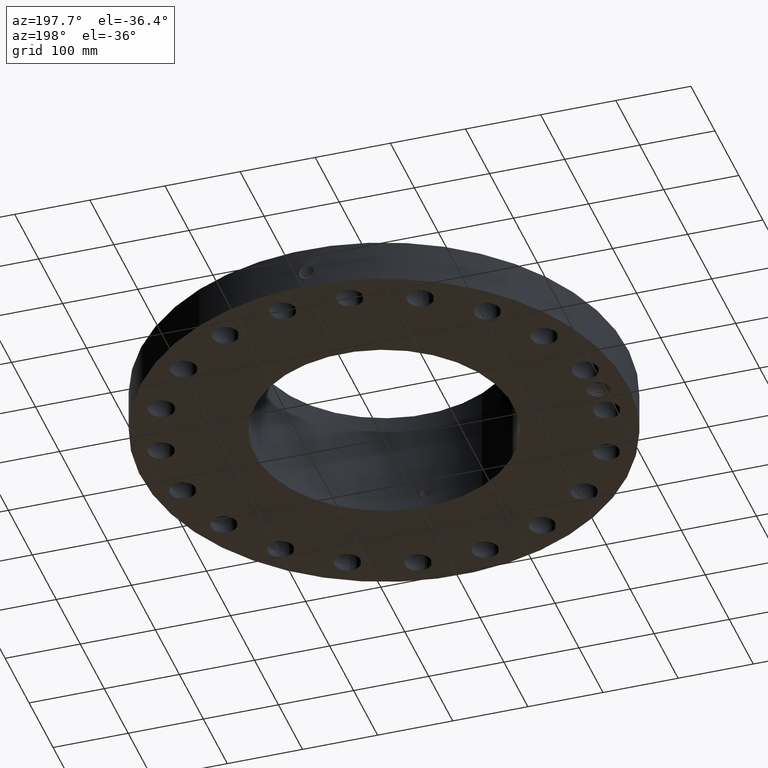
[diagram: clean part render]
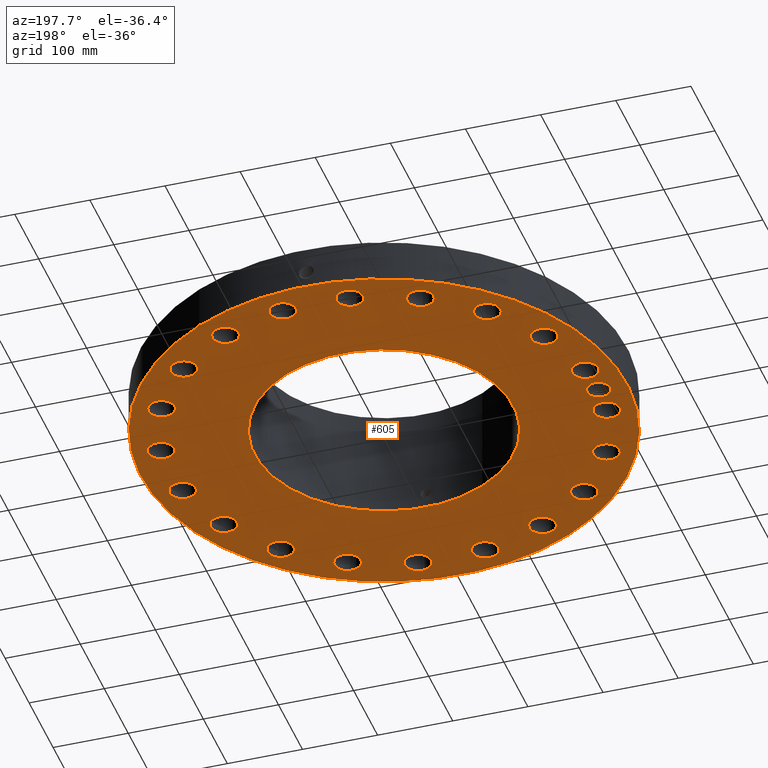
[diagram: same view with one face highlighted and labeled with its STEP entity id]
A machine part, auxiliary view. The second image highlights one B-rep face of the part: STEP entity #605.
In plain terms, the highlighted planar face has unit normal (0, 0, -1).
Its self-contained STEP definition (entity closure, byte-faithful):
#42=AXIS2_PLACEMENT_3D('Circle Axis2P3D',#40,#41,$) ;
#165=AXIS2_PLACEMENT_3D('Plane Axis2P3D',#162,#163,#164) ;
#169=AXIS2_PLACEMENT_3D('Circle Axis2P3D',#167,#168,$) ;
#178=AXIS2_PLACEMENT_3D('Circle Axis2P3D',#176,#177,$) ;
#187=AXIS2_PLACEMENT_3D('Circle Axis2P3D',#185,#186,$) ;
#194=AXIS2_PLACEMENT_3D('Circle Axis2P3D',#192,#193,$) ;
#229=AXIS2_PLACEMENT_3D('Circle Axis2P3D',#227,#228,$) ;
#238=AXIS2_PLACEMENT_3D('Circle Axis2P3D',#236,#237,$) ;
#247=AXIS2_PLACEMENT_3D('Circle Axis2P3D',#245,#246,$) ;
#256=AXIS2_PLACEMENT_3D('Circle Axis2P3D',#254,#255,$) ;
#265=AXIS2_PLACEMENT_3D('Circle Axis2P3D',#263,#264,$) ;
#274=AXIS2_PLACEMENT_3D('Circle Axis2P3D',#272,#273,$) ;
#283=AXIS2_PLACEMENT_3D('Circle Axis2P3D',#281,#282,$) ;
#292=AXIS2_PLACEMENT_3D('Circle Axis2P3D',#290,#291,$) ;
#301=AXIS2_PLACEMENT_3D('Circle Axis2P3D',#299,#300,$) ;
#310=AXIS2_PLACEMENT_3D('Circle Axis2P3D',#308,#309,$) ;
#319=AXIS2_PLACEMENT_3D('Circle Axis2P3D',#317,#318,$) ;
#328=AXIS2_PLACEMENT_3D('Circle Axis2P3D',#326,#327,$) ;
#337=AXIS2_PLACEMENT_3D('Circle Axis2P3D',#335,#336,$) ;
#346=AXIS2_PLACEMENT_3D('Circle Axis2P3D',#344,#345,$) ;
#355=AXIS2_PLACEMENT_3D('Circle Axis2P3D',#353,#354,$) ;
#364=AXIS2_PLACEMENT_3D('Circle Axis2P3D',#362,#363,$) ;
#373=AXIS2_PLACEMENT_3D('Circle Axis2P3D',#371,#372,$) ;
#382=AXIS2_PLACEMENT_3D('Circle Axis2P3D',#380,#381,$) ;
#391=AXIS2_PLACEMENT_3D('Circle Axis2P3D',#389,#390,$) ;
#400=AXIS2_PLACEMENT_3D('Circle Axis2P3D',#398,#399,$) ;
#409=AXIS2_PLACEMENT_3D('Circle Axis2P3D',#407,#408,$) ;
#418=AXIS2_PLACEMENT_3D('Circle Axis2P3D',#416,#417,$) ;
#427=AXIS2_PLACEMENT_3D('Circle Axis2P3D',#425,#426,$) ;
#436=AXIS2_PLACEMENT_3D('Circle Axis2P3D',#434,#435,$) ;
#445=AXIS2_PLACEMENT_3D('Circle Axis2P3D',#443,#444,$) ;
#454=AXIS2_PLACEMENT_3D('Circle Axis2P3D',#452,#453,$) ;
#463=AXIS2_PLACEMENT_3D('Circle Axis2P3D',#461,#462,$) ;
#472=AXIS2_PLACEMENT_3D('Circle Axis2P3D',#470,#471,$) ;
#481=AXIS2_PLACEMENT_3D('Circle Axis2P3D',#479,#480,$) ;
#490=AXIS2_PLACEMENT_3D('Circle Axis2P3D',#488,#489,$) ;
#499=AXIS2_PLACEMENT_3D('Circle Axis2P3D',#497,#498,$) ;
#508=AXIS2_PLACEMENT_3D('Circle Axis2P3D',#506,#507,$) ;
#517=AXIS2_PLACEMENT_3D('Circle Axis2P3D',#515,#516,$) ;
#526=AXIS2_PLACEMENT_3D('Circle Axis2P3D',#524,#525,$) ;
#535=AXIS2_PLACEMENT_3D('Circle Axis2P3D',#533,#534,$) ;
#544=AXIS2_PLACEMENT_3D('Circle Axis2P3D',#542,#543,$) ;
#553=AXIS2_PLACEMENT_3D('Circle Axis2P3D',#551,#552,$) ;
#562=AXIS2_PLACEMENT_3D('Circle Axis2P3D',#560,#561,$) ;
#571=AXIS2_PLACEMENT_3D('Circle Axis2P3D',#569,#570,$) ;
#580=AXIS2_PLACEMENT_3D('Circle Axis2P3D',#578,#579,$) ;
#589=AXIS2_PLACEMENT_3D('Circle Axis2P3D',#587,#588,$) ;
#598=AXIS2_PLACEMENT_3D('Circle Axis2P3D',#596,#597,$) ;
#40=CARTESIAN_POINT('Axis2P3D Location',(0.,0.,0.0600000000002)) ;
#44=CARTESIAN_POINT('Vertex',(-6.11267561723,-11.1891776641,0.0600000000002)) ;
#46=CARTESIAN_POINT('Vertex',(6.11267561723,11.1891776641,0.0600000000002)) ;
#162=CARTESIAN_POINT('Axis2P3D Location',(0.,6.78100000003,0.0600000000002)) ;
#167=CARTESIAN_POINT('Axis2P3D Location',(0.,0.,0.0600000000002)) ;
#176=CARTESIAN_POINT('Axis2P3D Location',(-11.25,2.23792987641E-015,0.0600000000002)) ;
#180=CARTESIAN_POINT('Vertex',(-11.789441225,0.294698084326,0.0600000000002)) ;
#182=CARTESIAN_POINT('Vertex',(-11.520636106,0.55190569324,0.0600000000002)) ;
#185=CARTESIAN_POINT('Axis2P3D Location',(-11.25,2.23792987641E-015,0.0600000000002)) ;
#189=CARTESIAN_POINT('Vertex',(-10.7105587751,-0.294698084326,0.0600000000002)) ;
#192=CARTESIAN_POINT('Axis2P3D Location',(-11.25,2.23792987641E-015,0.0600000000002)) ;
#196=CARTESIAN_POINT('Vertex',(-10.9815734513,0.552983710458,0.0600000000002)) ;
#200=CARTESIAN_POINT('Control Point',(-11.2511881331,0.625015801835,0.0600000000002)) ;
#201=CARTESIAN_POINT('Control Point',(-11.1999638691,0.623248975504,0.0600000000002)) ;
#202=CARTESIAN_POINT('Control Point',(-11.1489883522,0.616227121854,0.0600000000002)) ;
#203=CARTESIAN_POINT('Control Point',(-11.0989784461,0.60397700974,0.0600000000002)) ;
#204=CARTESIAN_POINT('Control Point',(-11.0457411051,0.584920482851,0.0600000000002)) ;
#205=CARTESIAN_POINT('Control Point',(-10.995366979,0.560135172004,0.0600000000002)) ;
#206=CARTESIAN_POINT('Control Point',(-10.9907431574,0.557799339803,0.0600000000002)) ;
#207=CARTESIAN_POINT('Control Point',(-10.9861450881,0.55541539548,0.0600000000002)) ;
#208=CARTESIAN_POINT('Control Point',(-10.9815734513,0.552983710458,0.0600000000002)) ;
#209=CARTESIAN_POINT('Vertex',(-11.2511881331,0.62501580183,0.0600000000002)) ;
#213=CARTESIAN_POINT('Control Point',(-11.2511881331,0.62501580183,0.0600000000002)) ;
#214=CARTESIAN_POINT('Control Point',(-11.3077319128,0.622854846874,0.0600000000002)) ;
#215=CARTESIAN_POINT('Control Point',(-11.3638939719,0.614292579959,0.0600000000002)) ;
#216=CARTESIAN_POINT('Control Point',(-11.4187141266,0.59938962543,0.0600000000002)) ;
#217=CARTESIAN_POINT('Control Point',(-11.4712409999,0.578435891857,0.0600000000002)) ;
#218=CARTESIAN_POINT('Control Point',(-11.520636106,0.55190569324,0.0600000000002)) ;
#227=CARTESIAN_POINT('Axis2P3D Location',(11.1114938317,-1.75988773171,0.0600000000002)) ;
#231=CARTESIAN_POINT('Vertex',(11.7170257994,-2.09069135335,0.0600000000002)) ;
#233=CARTESIAN_POINT('Vertex',(10.505961864,-1.42908411007,0.0600000000002)) ;
#236=CARTESIAN_POINT('Axis2P3D Location',(11.1114938317,-1.75988773171,0.0600000000002)) ;
#245=CARTESIAN_POINT('Axis2P3D Location',(0.,0.,0.0600000000002)) ;
#249=CARTESIAN_POINT('Vertex',(3.25098457729,5.9508873522,0.0600000000002)) ;
#251=CARTESIAN_POINT('Vertex',(-3.25098457729,-5.9508873522,0.0600000000002)) ;
#254=CARTESIAN_POINT('Axis2P3D Location',(0.,0.,0.0600000000002)) ;
#263=CARTESIAN_POINT('Axis2P3D Location',(10.0238233972,-5.10739312209,0.0600000000002)) ;
#267=CARTESIAN_POINT('Vertex',(9.55015221433,-4.60566051346,0.0600000000002)) ;
#269=CARTESIAN_POINT('Vertex',(10.49749458,-5.60912573072,0.0600000000002)) ;
#272=CARTESIAN_POINT('Axis2P3D Location',(10.0238233972,-5.10739312209,0.0600000000002)) ;
#281=CARTESIAN_POINT('Axis2P3D Location',(7.95495128838,-7.95495128838,0.0600000000002)) ;
#285=CARTESIAN_POINT('Vertex',(7.65950712607,-7.33140277626,0.0600000000002)) ;
#287=CARTESIAN_POINT('Vertex',(8.25039545069,-8.5784998005,0.0600000000002)) ;
#290=CARTESIAN_POINT('Axis2P3D Location',(7.95495128838,-7.95495128838,0.0600000000002)) ;
#299=CARTESIAN_POINT('Axis2P3D Location',(5.10739312209,-10.0238233972,0.0600000000002)) ;
#303=CARTESIAN_POINT('Vertex',(5.01909611339,-9.33949625444,0.0600000000002)) ;
#305=CARTESIAN_POINT('Vertex',(5.19569013079,-10.7081505399,0.0600000000002)) ;
#308=CARTESIAN_POINT('Axis2P3D Location',(5.10739312209,-10.0238233972,0.0600000000002)) ;
#317=CARTESIAN_POINT('Axis2P3D Location',(1.75988773171,-11.1114938317,0.0600000000002)) ;
#321=CARTESIAN_POINT('Vertex',(1.88738100302,-10.4333747671,0.0600000000002)) ;
#323=CARTESIAN_POINT('Vertex',(1.6323944604,-11.7896128963,0.0600000000002)) ;
#326=CARTESIAN_POINT('Axis2P3D Location',(1.75988773171,-11.1114938317,0.0600000000002)) ;
#335=CARTESIAN_POINT('Axis2P3D Location',(-1.75988773171,-11.1114938317,0.0600000000002)) ;
#339=CARTESIAN_POINT('Vertex',(-1.42908411007,-10.505961864,0.0600000000002)) ;
#341=CARTESIAN_POINT('Vertex',(-2.09069135335,-11.7170257994,0.0600000000002)) ;
#344=CARTESIAN_POINT('Axis2P3D Location',(-1.75988773171,-11.1114938317,0.0600000000002)) ;
#353=CARTESIAN_POINT('Axis2P3D Location',(-5.10739312209,-10.0238233972,0.0600000000002)) ;
#357=CARTESIAN_POINT('Vertex',(-4.60566051346,-9.55015221433,0.0600000000002)) ;
#359=CARTESIAN_POINT('Vertex',(-5.60912573072,-10.49749458,0.0600000000002)) ;
#362=CARTESIAN_POINT('Axis2P3D Location',(-5.10739312209,-10.0238233972,0.0600000000002)) ;
#371=CARTESIAN_POINT('Axis2P3D Location',(-7.95495128838,-7.95495128838,0.0600000000002)) ;
#375=CARTESIAN_POINT('Vertex',(-7.33140277626,-7.65950712607,0.0600000000002)) ;
#377=CARTESIAN_POINT('Vertex',(-8.5784998005,-8.25039545069,0.0600000000002)) ;
#380=CARTESIAN_POINT('Axis2P3D Location',(-7.95495128838,-7.95495128838,0.0600000000002)) ;
#389=CARTESIAN_POINT('Axis2P3D Location',(-10.0238233972,-5.10739312209,0.0600000000002)) ;
#393=CARTESIAN_POINT('Vertex',(-9.33949625444,-5.01909611339,0.0600000000002)) ;
#395=CARTESIAN_POINT('Vertex',(-10.7081505399,-5.19569013079,0.0600000000002)) ;
#398=CARTESIAN_POINT('Axis2P3D Location',(-10.0238233972,-5.10739312209,0.0600000000002)) ;
#407=CARTESIAN_POINT('Axis2P3D Location',(-11.1114938317,-1.75988773171,0.0600000000002)) ;
#411=CARTESIAN_POINT('Vertex',(-10.4333747671,-1.88738100302,0.0600000000002)) ;
#413=CARTESIAN_POINT('Vertex',(-11.7896128963,-1.6323944604,0.0600000000002)) ;
#416=CARTESIAN_POINT('Axis2P3D Location',(-11.1114938317,-1.75988773171,0.0600000000002)) ;
#425=CARTESIAN_POINT('Axis2P3D Location',(-11.1114938317,1.75988773171,0.0600000000002)) ;
#429=CARTESIAN_POINT('Vertex',(-10.505961864,1.42908411007,0.0600000000002)) ;
#431=CARTESIAN_POINT('Vertex',(-11.7170257994,2.09069135335,0.0600000000002)) ;
#434=CARTESIAN_POINT('Axis2P3D Location',(-11.1114938317,1.75988773171,0.0600000000002)) ;
#443=CARTESIAN_POINT('Axis2P3D Location',(-10.0238233972,5.10739312209,0.0600000000002)) ;
#447=CARTESIAN_POINT('Vertex',(-9.55015221433,4.60566051346,0.0600000000002)) ;
#449=CARTESIAN_POINT('Vertex',(-10.49749458,5.60912573072,0.0600000000002)) ;
#452=CARTESIAN_POINT('Axis2P3D Location',(-10.0238233972,5.10739312209,0.0600000000002)) ;
#461=CARTESIAN_POINT('Axis2P3D Location',(-7.95495128838,7.95495128838,0.0600000000002)) ;
#465=CARTESIAN_POINT('Vertex',(-7.65950712607,7.33140277626,0.0600000000002)) ;
#467=CARTESIAN_POINT('Vertex',(-8.25039545069,8.5784998005,0.0600000000002)) ;
#470=CARTESIAN_POINT('Axis2P3D Location',(-7.95495128838,7.95495128838,0.0600000000002)) ;
#479=CARTESIAN_POINT('Axis2P3D Location',(-5.10739312209,10.0238233972,0.0600000000002)) ;
#483=CARTESIAN_POINT('Vertex',(-5.01909611339,9.33949625444,0.0600000000002)) ;
#485=CARTESIAN_POINT('Vertex',(-5.19569013079,10.7081505399,0.0600000000002)) ;
#488=CARTESIAN_POINT('Axis2P3D Location',(-5.10739312209,10.0238233972,0.0600000000002)) ;
#497=CARTESIAN_POINT('Axis2P3D Location',(-1.75988773171,11.1114938317,0.0600000000002)) ;
#501=CARTESIAN_POINT('Vertex',(-1.88738100302,10.4333747671,0.0600000000002)) ;
#503=CARTESIAN_POINT('Vertex',(-1.6323944604,11.7896128963,0.0600000000002)) ;
#506=CARTESIAN_POINT('Axis2P3D Location',(-1.75988773171,11.1114938317,0.0600000000002)) ;
#515=CARTESIAN_POINT('Axis2P3D Location',(1.75988773171,11.1114938317,0.0600000000002)) ;
#519=CARTESIAN_POINT('Vertex',(1.42908411007,10.505961864,0.0600000000002)) ;
#521=CARTESIAN_POINT('Vertex',(2.09069135335,11.7170257994,0.0600000000002)) ;
#524=CARTESIAN_POINT('Axis2P3D Location',(1.75988773171,11.1114938317,0.0600000000002)) ;
#533=CARTESIAN_POINT('Axis2P3D Location',(5.10739312209,10.0238233972,0.0600000000002)) ;
#537=CARTESIAN_POINT('Vertex',(4.60566051346,9.55015221433,0.0600000000002)) ;
#539=CARTESIAN_POINT('Vertex',(5.60912573072,10.49749458,0.0600000000002)) ;
#542=CARTESIAN_POINT('Axis2P3D Location',(5.10739312209,10.0238233972,0.0600000000002)) ;
#551=CARTESIAN_POINT('Axis2P3D Location',(7.95495128838,7.95495128838,0.0600000000002)) ;
#555=CARTESIAN_POINT('Vertex',(7.33140277626,7.65950712607,0.0600000000002)) ;
#557=CARTESIAN_POINT('Vertex',(8.5784998005,8.25039545069,0.0600000000002)) ;
#560=CARTESIAN_POINT('Axis2P3D Location',(7.95495128838,7.95495128838,0.0600000000002)) ;
#569=CARTESIAN_POINT('Axis2P3D Location',(10.0238233972,5.10739312209,0.0600000000002)) ;
#573=CARTESIAN_POINT('Vertex',(9.33949625444,5.01909611339,0.0600000000002)) ;
#575=CARTESIAN_POINT('Vertex',(10.7081505399,5.19569013079,0.0600000000002)) ;
#578=CARTESIAN_POINT('Axis2P3D Location',(10.0238233972,5.10739312209,0.0600000000002)) ;
#587=CARTESIAN_POINT('Axis2P3D Location',(11.1114938317,1.75988773171,0.0600000000002)) ;
#591=CARTESIAN_POINT('Vertex',(10.4333747671,1.88738100302,0.0600000000002)) ;
#593=CARTESIAN_POINT('Vertex',(11.7896128963,1.6323944604,0.0600000000002)) ;
#596=CARTESIAN_POINT('Axis2P3D Location',(11.1114938317,1.75988773171,0.0600000000002)) ;
#41=DIRECTION('Axis2P3D Direction',(0.,0.,-0.0393700787402)) ;
#163=DIRECTION('Axis2P3D Direction',(0.,0.,-0.0393700787402)) ;
#164=DIRECTION('Axis2P3D XDirection',(0.0393700787402,0.,0.)) ;
#168=DIRECTION('Axis2P3D Direction',(0.,0.,-0.0393700787402)) ;
#177=DIRECTION('Axis2P3D Direction',(0.,0.,-0.0393700787402)) ;
#186=DIRECTION('Axis2P3D Direction',(0.,0.,-0.0393700787402)) ;
#193=DIRECTION('Axis2P3D Direction',(0.,0.,-0.0393700787402)) ;
#228=DIRECTION('Axis2P3D Direction',(0.,0.,-0.0393700787402)) ;
#237=DIRECTION('Axis2P3D Direction',(0.,0.,-0.0393700787402)) ;
#246=DIRECTION('Axis2P3D Direction',(0.,0.,-0.0393700787402)) ;
#255=DIRECTION('Axis2P3D Direction',(0.,0.,-0.0393700787402)) ;
#264=DIRECTION('Axis2P3D Direction',(0.,0.,-0.0393700787402)) ;
#273=DIRECTION('Axis2P3D Direction',(0.,0.,-0.0393700787402)) ;
#282=DIRECTION('Axis2P3D Direction',(0.,0.,-0.0393700787402)) ;
#291=DIRECTION('Axis2P3D Direction',(0.,0.,-0.0393700787402)) ;
#300=DIRECTION('Axis2P3D Direction',(0.,0.,-0.0393700787402)) ;
#309=DIRECTION('Axis2P3D Direction',(0.,0.,-0.0393700787402)) ;
#318=DIRECTION('Axis2P3D Direction',(0.,0.,-0.0393700787402)) ;
#327=DIRECTION('Axis2P3D Direction',(0.,0.,-0.0393700787402)) ;
#336=DIRECTION('Axis2P3D Direction',(0.,0.,-0.0393700787402)) ;
#345=DIRECTION('Axis2P3D Direction',(0.,0.,-0.0393700787402)) ;
#354=DIRECTION('Axis2P3D Direction',(0.,0.,-0.0393700787402)) ;
#363=DIRECTION('Axis2P3D Direction',(0.,0.,-0.0393700787402)) ;
#372=DIRECTION('Axis2P3D Direction',(0.,0.,-0.0393700787402)) ;
#381=DIRECTION('Axis2P3D Direction',(0.,0.,-0.0393700787402)) ;
#390=DIRECTION('Axis2P3D Direction',(0.,0.,-0.0393700787402)) ;
#399=DIRECTION('Axis2P3D Direction',(0.,0.,-0.0393700787402)) ;
#408=DIRECTION('Axis2P3D Direction',(0.,0.,-0.0393700787402)) ;
#417=DIRECTION('Axis2P3D Direction',(0.,0.,-0.0393700787402)) ;
#426=DIRECTION('Axis2P3D Direction',(0.,0.,-0.0393700787402)) ;
#435=DIRECTION('Axis2P3D Direction',(0.,0.,-0.0393700787402)) ;
#444=DIRECTION('Axis2P3D Direction',(0.,0.,-0.0393700787402)) ;
#453=DIRECTION('Axis2P3D Direction',(0.,0.,-0.0393700787402)) ;
#462=DIRECTION('Axis2P3D Direction',(0.,0.,-0.0393700787402)) ;
#471=DIRECTION('Axis2P3D Direction',(0.,0.,-0.0393700787402)) ;
#480=DIRECTION('Axis2P3D Direction',(0.,0.,-0.0393700787402)) ;
#489=DIRECTION('Axis2P3D Direction',(0.,0.,-0.0393700787402)) ;
#498=DIRECTION('Axis2P3D Direction',(0.,0.,-0.0393700787402)) ;
#507=DIRECTION('Axis2P3D Direction',(0.,0.,-0.0393700787402)) ;
#516=DIRECTION('Axis2P3D Direction',(0.,0.,-0.0393700787402)) ;
#525=DIRECTION('Axis2P3D Direction',(0.,0.,-0.0393700787402)) ;
#534=DIRECTION('Axis2P3D Direction',(0.,0.,-0.0393700787402)) ;
#543=DIRECTION('Axis2P3D Direction',(0.,0.,-0.0393700787402)) ;
#552=DIRECTION('Axis2P3D Direction',(0.,0.,-0.0393700787402)) ;
#561=DIRECTION('Axis2P3D Direction',(0.,0.,-0.0393700787402)) ;
#570=DIRECTION('Axis2P3D Direction',(0.,0.,-0.0393700787402)) ;
#579=DIRECTION('Axis2P3D Direction',(0.,0.,-0.0393700787402)) ;
#588=DIRECTION('Axis2P3D Direction',(0.,0.,-0.0393700787402)) ;
#597=DIRECTION('Axis2P3D Direction',(0.,0.,-0.0393700787402)) ;
#173=ORIENTED_EDGE('',*,*,#48,.T.) ;
#174=ORIENTED_EDGE('',*,*,#171,.T.) ;
#221=ORIENTED_EDGE('',*,*,#184,.F.) ;
#222=ORIENTED_EDGE('',*,*,#191,.F.) ;
#223=ORIENTED_EDGE('',*,*,#198,.F.) ;
#224=ORIENTED_EDGE('',*,*,#211,.F.) ;
#225=ORIENTED_EDGE('',*,*,#219,.T.) ;
#242=ORIENTED_EDGE('',*,*,#235,.F.) ;
#243=ORIENTED_EDGE('',*,*,#240,.F.) ;
#260=ORIENTED_EDGE('',*,*,#253,.F.) ;
#261=ORIENTED_EDGE('',*,*,#258,.F.) ;
#278=ORIENTED_EDGE('',*,*,#271,.F.) ;
#279=ORIENTED_EDGE('',*,*,#276,.F.) ;
#296=ORIENTED_EDGE('',*,*,#289,.F.) ;
#297=ORIENTED_EDGE('',*,*,#294,.F.) ;
#314=ORIENTED_EDGE('',*,*,#307,.F.) ;
#315=ORIENTED_EDGE('',*,*,#312,.F.) ;
#332=ORIENTED_EDGE('',*,*,#325,.F.) ;
#333=ORIENTED_EDGE('',*,*,#330,.F.) ;
#350=ORIENTED_EDGE('',*,*,#343,.F.) ;
#351=ORIENTED_EDGE('',*,*,#348,.F.) ;
#368=ORIENTED_EDGE('',*,*,#361,.F.) ;
#369=ORIENTED_EDGE('',*,*,#366,.F.) ;
#386=ORIENTED_EDGE('',*,*,#379,.F.) ;
#387=ORIENTED_EDGE('',*,*,#384,.F.) ;
#404=ORIENTED_EDGE('',*,*,#397,.F.) ;
#405=ORIENTED_EDGE('',*,*,#402,.F.) ;
#422=ORIENTED_EDGE('',*,*,#415,.F.) ;
#423=ORIENTED_EDGE('',*,*,#420,.F.) ;
#440=ORIENTED_EDGE('',*,*,#433,.F.) ;
#441=ORIENTED_EDGE('',*,*,#438,.F.) ;
#458=ORIENTED_EDGE('',*,*,#451,.F.) ;
#459=ORIENTED_EDGE('',*,*,#456,.F.) ;
#476=ORIENTED_EDGE('',*,*,#469,.F.) ;
#477=ORIENTED_EDGE('',*,*,#474,.F.) ;
#494=ORIENTED_EDGE('',*,*,#487,.F.) ;
#495=ORIENTED_EDGE('',*,*,#492,.F.) ;
#512=ORIENTED_EDGE('',*,*,#505,.F.) ;
#513=ORIENTED_EDGE('',*,*,#510,.F.) ;
#530=ORIENTED_EDGE('',*,*,#523,.F.) ;
#531=ORIENTED_EDGE('',*,*,#528,.F.) ;
#548=ORIENTED_EDGE('',*,*,#541,.F.) ;
#549=ORIENTED_EDGE('',*,*,#546,.F.) ;
#566=ORIENTED_EDGE('',*,*,#559,.F.) ;
#567=ORIENTED_EDGE('',*,*,#564,.F.) ;
#584=ORIENTED_EDGE('',*,*,#577,.F.) ;
#585=ORIENTED_EDGE('',*,*,#582,.F.) ;
#602=ORIENTED_EDGE('',*,*,#595,.F.) ;
#603=ORIENTED_EDGE('',*,*,#600,.F.) ;
#226=FACE_BOUND('',#220,.T.) ;
#244=FACE_BOUND('',#241,.T.) ;
#262=FACE_BOUND('',#259,.T.) ;
#280=FACE_BOUND('',#277,.T.) ;
#298=FACE_BOUND('',#295,.T.) ;
#316=FACE_BOUND('',#313,.T.) ;
#334=FACE_BOUND('',#331,.T.) ;
#352=FACE_BOUND('',#349,.T.) ;
#370=FACE_BOUND('',#367,.T.) ;
#388=FACE_BOUND('',#385,.T.) ;
#406=FACE_BOUND('',#403,.T.) ;
#424=FACE_BOUND('',#421,.T.) ;
#442=FACE_BOUND('',#439,.T.) ;
#460=FACE_BOUND('',#457,.T.) ;
#478=FACE_BOUND('',#475,.T.) ;
#496=FACE_BOUND('',#493,.T.) ;
#514=FACE_BOUND('',#511,.T.) ;
#532=FACE_BOUND('',#529,.T.) ;
#550=FACE_BOUND('',#547,.T.) ;
#568=FACE_BOUND('',#565,.T.) ;
#586=FACE_BOUND('',#583,.T.) ;
#604=FACE_BOUND('',#601,.T.) ;
#605=ADVANCED_FACE('PartBody',(#175,#226,#244,#262,#280,#298,#316,#334,#352,#370,#388,#406,#424,#442,#460,#478,#496,#514,#532,#550,#568,#586,#604),#166,.T.) ;
#199=B_SPLINE_CURVE_WITH_KNOTS('',5,(#200,#201,#202,#203,#204,#205,#206,#207,#208),.UNSPECIFIED.,.F.,.U.,(6,3,6),(0.,8.96877462556,9.88063108938),.UNSPECIFIED.) ;
#212=B_SPLINE_CURVE_WITH_KNOTS('',5,(#213,#214,#215,#216,#217,#218),.UNSPECIFIED.,.F.,.U.,(6,6),(0.,9.90151310421),.UNSPECIFIED.) ;
#43=CIRCLE('generated circle',#42,12.7500000001) ;
#170=CIRCLE('generated circle',#169,12.7500000001) ;
#179=CIRCLE('generated circle',#178,0.614690000002) ;
#188=CIRCLE('generated circle',#187,0.614690000002) ;
#195=CIRCLE('generated circle',#194,0.614690000002) ;
#230=CIRCLE('generated circle',#229,0.690000000003) ;
#239=CIRCLE('generated circle',#238,0.690000000003) ;
#248=CIRCLE('generated circle',#247,6.78100000003) ;
#257=CIRCLE('generated circle',#256,6.78100000003) ;
#266=CIRCLE('generated circle',#265,0.690000000003) ;
#275=CIRCLE('generated circle',#274,0.690000000003) ;
#284=CIRCLE('generated circle',#283,0.690000000003) ;
#293=CIRCLE('generated circle',#292,0.690000000003) ;
#302=CIRCLE('generated circle',#301,0.690000000003) ;
#311=CIRCLE('generated circle',#310,0.690000000003) ;
#320=CIRCLE('generated circle',#319,0.690000000003) ;
#329=CIRCLE('generated circle',#328,0.690000000003) ;
#338=CIRCLE('generated circle',#337,0.690000000003) ;
#347=CIRCLE('generated circle',#346,0.690000000003) ;
#356=CIRCLE('generated circle',#355,0.690000000003) ;
#365=CIRCLE('generated circle',#364,0.690000000003) ;
#374=CIRCLE('generated circle',#373,0.690000000003) ;
#383=CIRCLE('generated circle',#382,0.690000000003) ;
#392=CIRCLE('generated circle',#391,0.690000000003) ;
#401=CIRCLE('generated circle',#400,0.690000000003) ;
#410=CIRCLE('generated circle',#409,0.690000000003) ;
#419=CIRCLE('generated circle',#418,0.690000000003) ;
#428=CIRCLE('generated circle',#427,0.690000000003) ;
#437=CIRCLE('generated circle',#436,0.690000000003) ;
#446=CIRCLE('generated circle',#445,0.690000000003) ;
#455=CIRCLE('generated circle',#454,0.690000000003) ;
#464=CIRCLE('generated circle',#463,0.690000000003) ;
#473=CIRCLE('generated circle',#472,0.690000000003) ;
#482=CIRCLE('generated circle',#481,0.690000000003) ;
#491=CIRCLE('generated circle',#490,0.690000000003) ;
#500=CIRCLE('generated circle',#499,0.690000000003) ;
#509=CIRCLE('generated circle',#508,0.690000000003) ;
#518=CIRCLE('generated circle',#517,0.690000000003) ;
#527=CIRCLE('generated circle',#526,0.690000000003) ;
#536=CIRCLE('generated circle',#535,0.690000000003) ;
#545=CIRCLE('generated circle',#544,0.690000000003) ;
#554=CIRCLE('generated circle',#553,0.690000000003) ;
#563=CIRCLE('generated circle',#562,0.690000000003) ;
#572=CIRCLE('generated circle',#571,0.690000000003) ;
#581=CIRCLE('generated circle',#580,0.690000000003) ;
#590=CIRCLE('generated circle',#589,0.690000000003) ;
#599=CIRCLE('generated circle',#598,0.690000000003) ;
#48=EDGE_CURVE('',#45,#47,#43,.T.) ;
#171=EDGE_CURVE('',#47,#45,#170,.T.) ;
#184=EDGE_CURVE('',#181,#183,#179,.T.) ;
#191=EDGE_CURVE('',#190,#181,#188,.T.) ;
#198=EDGE_CURVE('',#197,#190,#195,.T.) ;
#211=EDGE_CURVE('',#210,#197,#199,.T.) ;
#219=EDGE_CURVE('',#210,#183,#212,.T.) ;
#235=EDGE_CURVE('',#232,#234,#230,.T.) ;
#240=EDGE_CURVE('',#234,#232,#239,.T.) ;
#253=EDGE_CURVE('',#250,#252,#248,.T.) ;
#258=EDGE_CURVE('',#252,#250,#257,.T.) ;
#271=EDGE_CURVE('',#268,#270,#266,.T.) ;
#276=EDGE_CURVE('',#270,#268,#275,.T.) ;
#289=EDGE_CURVE('',#286,#288,#284,.T.) ;
#294=EDGE_CURVE('',#288,#286,#293,.T.) ;
#307=EDGE_CURVE('',#304,#306,#302,.T.) ;
#312=EDGE_CURVE('',#306,#304,#311,.T.) ;
#325=EDGE_CURVE('',#322,#324,#320,.T.) ;
#330=EDGE_CURVE('',#324,#322,#329,.T.) ;
#343=EDGE_CURVE('',#340,#342,#338,.T.) ;
#348=EDGE_CURVE('',#342,#340,#347,.T.) ;
#361=EDGE_CURVE('',#358,#360,#356,.T.) ;
#366=EDGE_CURVE('',#360,#358,#365,.T.) ;
#379=EDGE_CURVE('',#376,#378,#374,.T.) ;
#384=EDGE_CURVE('',#378,#376,#383,.T.) ;
#397=EDGE_CURVE('',#394,#396,#392,.T.) ;
#402=EDGE_CURVE('',#396,#394,#401,.T.) ;
#415=EDGE_CURVE('',#412,#414,#410,.T.) ;
#420=EDGE_CURVE('',#414,#412,#419,.T.) ;
#433=EDGE_CURVE('',#430,#432,#428,.T.) ;
#438=EDGE_CURVE('',#432,#430,#437,.T.) ;
#451=EDGE_CURVE('',#448,#450,#446,.T.) ;
#456=EDGE_CURVE('',#450,#448,#455,.T.) ;
#469=EDGE_CURVE('',#466,#468,#464,.T.) ;
#474=EDGE_CURVE('',#468,#466,#473,.T.) ;
#487=EDGE_CURVE('',#484,#486,#482,.T.) ;
#492=EDGE_CURVE('',#486,#484,#491,.T.) ;
#505=EDGE_CURVE('',#502,#504,#500,.T.) ;
#510=EDGE_CURVE('',#504,#502,#509,.T.) ;
#523=EDGE_CURVE('',#520,#522,#518,.T.) ;
#528=EDGE_CURVE('',#522,#520,#527,.T.) ;
#541=EDGE_CURVE('',#538,#540,#536,.T.) ;
#546=EDGE_CURVE('',#540,#538,#545,.T.) ;
#559=EDGE_CURVE('',#556,#558,#554,.T.) ;
#564=EDGE_CURVE('',#558,#556,#563,.T.) ;
#577=EDGE_CURVE('',#574,#576,#572,.T.) ;
#582=EDGE_CURVE('',#576,#574,#581,.T.) ;
#595=EDGE_CURVE('',#592,#594,#590,.T.) ;
#600=EDGE_CURVE('',#594,#592,#599,.T.) ;
#172=EDGE_LOOP('',(#173,#174)) ;
#220=EDGE_LOOP('',(#221,#222,#223,#224,#225)) ;
#241=EDGE_LOOP('',(#242,#243)) ;
#259=EDGE_LOOP('',(#260,#261)) ;
#277=EDGE_LOOP('',(#278,#279)) ;
#295=EDGE_LOOP('',(#296,#297)) ;
#313=EDGE_LOOP('',(#314,#315)) ;
#331=EDGE_LOOP('',(#332,#333)) ;
#349=EDGE_LOOP('',(#350,#351)) ;
#367=EDGE_LOOP('',(#368,#369)) ;
#385=EDGE_LOOP('',(#386,#387)) ;
#403=EDGE_LOOP('',(#404,#405)) ;
#421=EDGE_LOOP('',(#422,#423)) ;
#439=EDGE_LOOP('',(#440,#441)) ;
#457=EDGE_LOOP('',(#458,#459)) ;
#475=EDGE_LOOP('',(#476,#477)) ;
#493=EDGE_LOOP('',(#494,#495)) ;
#511=EDGE_LOOP('',(#512,#513)) ;
#529=EDGE_LOOP('',(#530,#531)) ;
#547=EDGE_LOOP('',(#548,#549)) ;
#565=EDGE_LOOP('',(#566,#567)) ;
#583=EDGE_LOOP('',(#584,#585)) ;
#601=EDGE_LOOP('',(#602,#603)) ;
#175=FACE_OUTER_BOUND('',#172,.T.) ;
#166=PLANE('',#165) ;
#45=VERTEX_POINT('',#44) ;
#47=VERTEX_POINT('',#46) ;
#181=VERTEX_POINT('',#180) ;
#183=VERTEX_POINT('',#182) ;
#190=VERTEX_POINT('',#189) ;
#197=VERTEX_POINT('',#196) ;
#210=VERTEX_POINT('',#209) ;
#232=VERTEX_POINT('',#231) ;
#234=VERTEX_POINT('',#233) ;
#250=VERTEX_POINT('',#249) ;
#252=VERTEX_POINT('',#251) ;
#268=VERTEX_POINT('',#267) ;
#270=VERTEX_POINT('',#269) ;
#286=VERTEX_POINT('',#285) ;
#288=VERTEX_POINT('',#287) ;
#304=VERTEX_POINT('',#303) ;
#306=VERTEX_POINT('',#305) ;
#322=VERTEX_POINT('',#321) ;
#324=VERTEX_POINT('',#323) ;
#340=VERTEX_POINT('',#339) ;
#342=VERTEX_POINT('',#341) ;
#358=VERTEX_POINT('',#357) ;
#360=VERTEX_POINT('',#359) ;
#376=VERTEX_POINT('',#375) ;
#378=VERTEX_POINT('',#377) ;
#394=VERTEX_POINT('',#393) ;
#396=VERTEX_POINT('',#395) ;
#412=VERTEX_POINT('',#411) ;
#414=VERTEX_POINT('',#413) ;
#430=VERTEX_POINT('',#429) ;
#432=VERTEX_POINT('',#431) ;
#448=VERTEX_POINT('',#447) ;
#450=VERTEX_POINT('',#449) ;
#466=VERTEX_POINT('',#465) ;
#468=VERTEX_POINT('',#467) ;
#484=VERTEX_POINT('',#483) ;
#486=VERTEX_POINT('',#485) ;
#502=VERTEX_POINT('',#501) ;
#504=VERTEX_POINT('',#503) ;
#520=VERTEX_POINT('',#519) ;
#522=VERTEX_POINT('',#521) ;
#538=VERTEX_POINT('',#537) ;
#540=VERTEX_POINT('',#539) ;
#556=VERTEX_POINT('',#555) ;
#558=VERTEX_POINT('',#557) ;
#574=VERTEX_POINT('',#573) ;
#576=VERTEX_POINT('',#575) ;
#592=VERTEX_POINT('',#591) ;
#594=VERTEX_POINT('',#593) ;